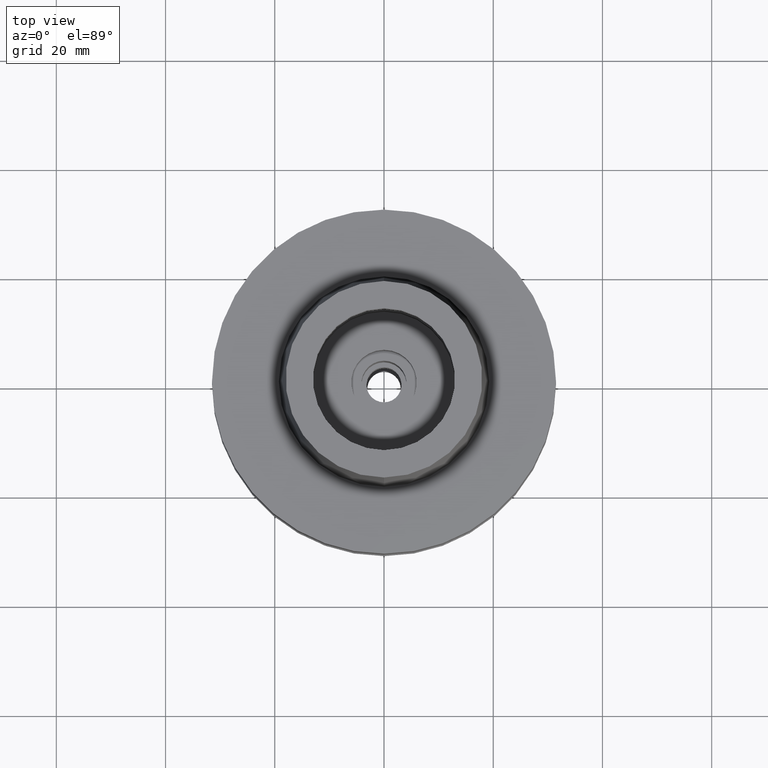
[diagram: clean part render]
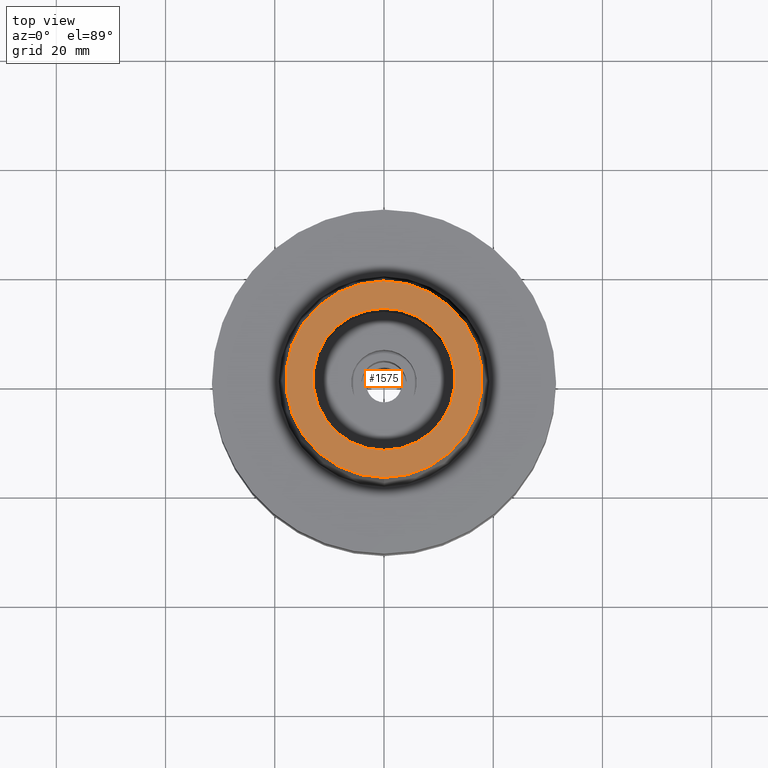
[diagram: same view with one face highlighted and labeled with its STEP entity id]
A machine part, top view. The second image highlights one B-rep face of the part: STEP entity #1575.
In plain terms, the highlighted planar face has unit normal (0, 0, 1).
Its self-contained STEP definition (entity closure, byte-faithful):
#69 = VERTEX_POINT ( 'NONE', #804 ) ;
#117 = DIRECTION ( 'NONE',  ( 0.0000000000000000000, 0.0000000000000000000, 1.000000000000000000 ) ) ;
#122 = DIRECTION ( 'NONE',  ( 0.0000000000000000000, 0.0000000000000000000, -1.000000000000000000 ) ) ;
#306 = CIRCLE ( 'NONE', #535, 18.00000182882000033 ) ;
#322 = EDGE_LOOP ( 'NONE', ( #1417, #1343 ) ) ;
#350 = DIRECTION ( 'NONE',  ( 0.0000000000000000000, 0.0000000000000000000, 1.000000000000000000 ) ) ;
#367 = VERTEX_POINT ( 'NONE', #1731 ) ;
#372 = FACE_BOUND ( 'NONE', #1804, .T. ) ;
#374 = EDGE_CURVE ( 'NONE', #786, #1112, #306, .T. ) ;
#535 = AXIS2_PLACEMENT_3D ( 'NONE', #2146, #2356, #1707 ) ;
#557 = FACE_OUTER_BOUND ( 'NONE', #322, .T. ) ;
#600 = CARTESIAN_POINT ( 'NONE',  ( 0.0000000000000000000, 0.0000000000000000000, 25.00000000000000000 ) ) ;
#786 = VERTEX_POINT ( 'NONE', #2629 ) ;
#804 = CARTESIAN_POINT ( 'NONE',  ( 0.0000000000000000000, 13.00000000000000000, 25.00000000000000000 ) ) ;
#1004 = DIRECTION ( 'NONE',  ( 0.0000000000000000000, -1.000000000000000000, 0.0000000000000000000 ) ) ;
#1081 = CIRCLE ( 'NONE', #2295, 13.00000000000000000 ) ;
#1112 = VERTEX_POINT ( 'NONE', #2672 ) ;
#1271 = DIRECTION ( 'NONE',  ( 0.0000000000000000000, 1.000000000000000000, 0.0000000000000000000 ) ) ;
#1343 = ORIENTED_EDGE ( 'NONE', *, *, #374, .F. ) ;
#1417 = ORIENTED_EDGE ( 'NONE', *, *, #2096, .F. ) ;
#1452 = PLANE ( 'NONE',  #2060 ) ;
#1485 = DIRECTION ( 'NONE',  ( 0.0000000000000000000, 0.0000000000000000000, 1.000000000000000000 ) ) ;
#1575 = ADVANCED_FACE ( 'NONE', ( #557, #372 ), #1452, .T. ) ;
#1654 = CIRCLE ( 'NONE', #2535, 18.00000182882000033 ) ;
#1689 = CARTESIAN_POINT ( 'NONE',  ( 0.0000000000000000000, 0.0000000000000000000, 25.00000000000000000 ) ) ;
#1707 = DIRECTION ( 'NONE',  ( 0.0000000000000000000, -1.000000000000000000, 0.0000000000000000000 ) ) ;
#1731 = CARTESIAN_POINT ( 'NONE',  ( 0.0000000000000000000, -13.00000000000000000, 25.00000000000000000 ) ) ;
#1804 = EDGE_LOOP ( 'NONE', ( #2270, #1832 ) ) ;
#1832 = ORIENTED_EDGE ( 'NONE', *, *, #2145, .F. ) ;
#1891 = CIRCLE ( 'NONE', #1934, 13.00000000000000000 ) ;
#1934 = AXIS2_PLACEMENT_3D ( 'NONE', #2099, #350, #1004 ) ;
#2060 = AXIS2_PLACEMENT_3D ( 'NONE', #600, #117, #2523 ) ;
#2096 = EDGE_CURVE ( 'NONE', #1112, #786, #1654, .T. ) ;
#2099 = CARTESIAN_POINT ( 'NONE',  ( 0.0000000000000000000, 0.0000000000000000000, 25.00000000000000000 ) ) ;
#2145 = EDGE_CURVE ( 'NONE', #367, #69, #1891, .T. ) ;
#2146 = CARTESIAN_POINT ( 'NONE',  ( 0.0000000000000000000, 0.0000000000000000000, 25.00000000000000000 ) ) ;
#2215 = EDGE_CURVE ( 'NONE', #69, #367, #1081, .T. ) ;
#2270 = ORIENTED_EDGE ( 'NONE', *, *, #2215, .F. ) ;
#2295 = AXIS2_PLACEMENT_3D ( 'NONE', #1689, #1485, #1271 ) ;
#2338 = CARTESIAN_POINT ( 'NONE',  ( 0.0000000000000000000, 0.0000000000000000000, 25.00000000000000000 ) ) ;
#2356 = DIRECTION ( 'NONE',  ( 0.0000000000000000000, 0.0000000000000000000, -1.000000000000000000 ) ) ;
#2523 = DIRECTION ( 'NONE',  ( 1.000000000000000000, 0.0000000000000000000, 0.0000000000000000000 ) ) ;
#2535 = AXIS2_PLACEMENT_3D ( 'NONE', #2338, #122, #2746 ) ;
#2629 = CARTESIAN_POINT ( 'NONE',  ( 0.0000000000000000000, -18.00000182882000033, 25.00000000000000000 ) ) ;
#2672 = CARTESIAN_POINT ( 'NONE',  ( 0.0000000000000000000, 18.00000182882000033, 25.00000000000000000 ) ) ;
#2746 = DIRECTION ( 'NONE',  ( 0.0000000000000000000, 1.000000000000000000, 0.0000000000000000000 ) ) ;